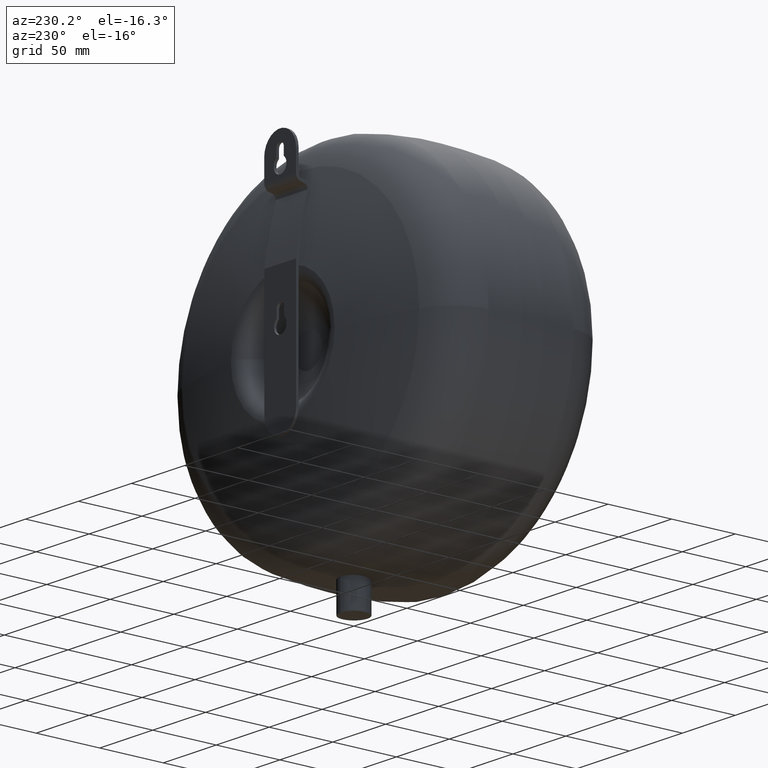
[diagram: clean part render]
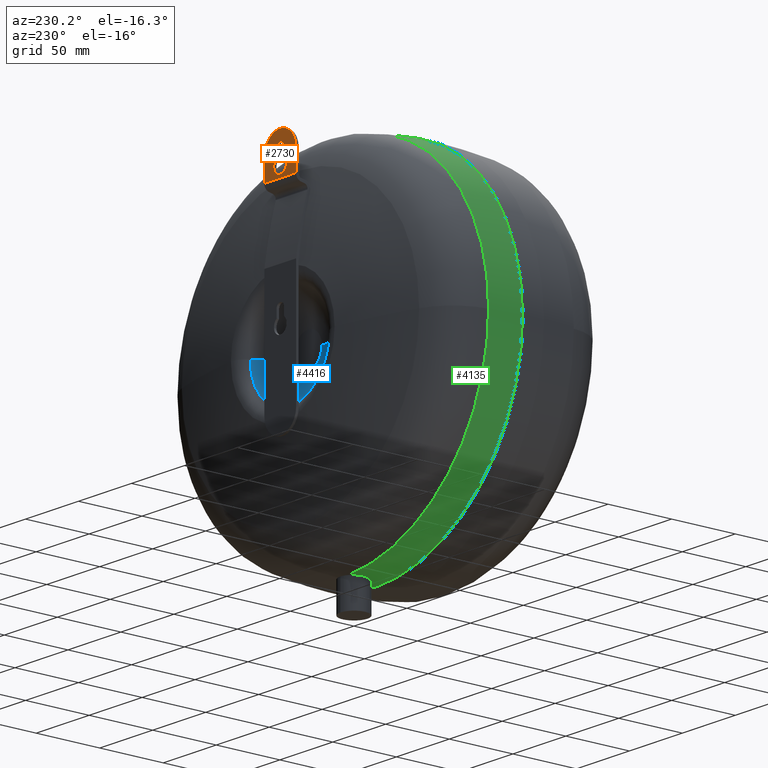
[diagram: same view with three faces highlighted in distinct colors, each labeled with its STEP entity id]
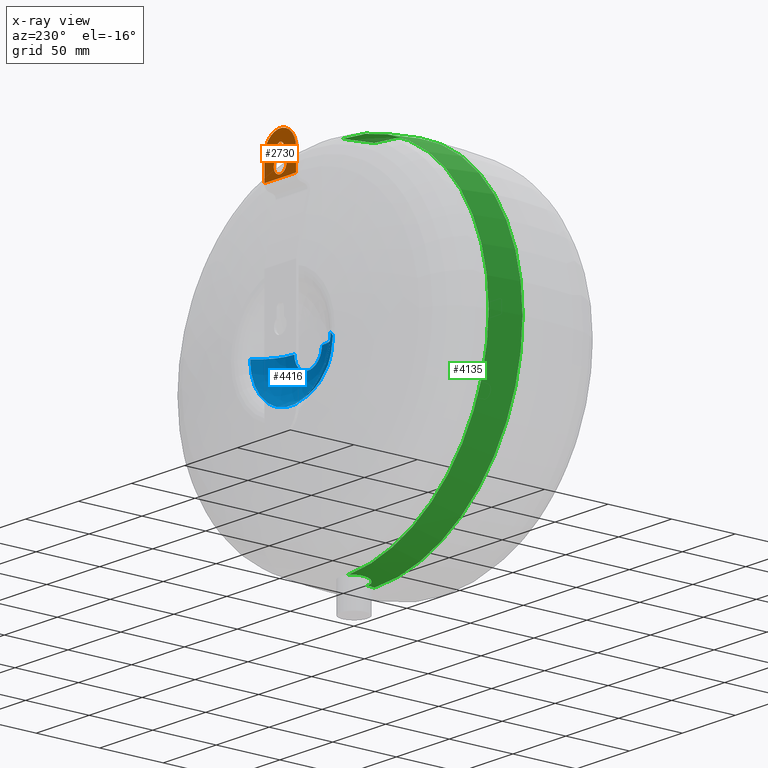
[diagram: x-ray of the same camera — body ghosted, the three highlighted faces saturated]
A machine part, auxiliary view with three faces highlighted in distinct colors.
The next image is the same camera in x-ray (body ghosted, the three faces saturated) — at least one of them is partly hidden behind the body in this view.
Their STEP definitions:

[orange] entity #2730 — the highlighted planar face has unit normal (0, 1, -0.0005).
#2493=CARTESIAN_POINT('',(3.500000000000057,58.087227742557793,277.87933869321091));
#2494=VERTEX_POINT('',#2493);
#2501=CARTESIAN_POINT('',(-3.499999999999965,58.087227742557793,277.87933869321091));
#2502=VERTEX_POINT('',#2501);
#2503=CARTESIAN_POINT('',(3.552714E-014,58.084803880362742,273.00594212357976));
#2504=DIRECTION('',(-2.881267E-016,-0.999999876313509,0.000497366028111));
#2505=DIRECTION('',(0.583333333333336,0.000403977032508,0.81223276160518));
#2506=AXIS2_PLACEMENT_3D('',#2503,#2504,#2505);
#2507=CIRCLE('',#2506,6.0);
#2508=EDGE_CURVE('',#2502,#2494,#2507,.T.);
#2533=CARTESIAN_POINT('',(-3.499999999999965,58.090274906671972,284.00594076302843));
#2534=VERTEX_POINT('',#2533);
#2535=CARTESIAN_POINT('',(-3.499999999999964,58.090274906671972,284.00594076302843));
#2536=DIRECTION('',(-7.248539E-017,-0.000497366028112,-0.999999876313509));
#2537=VECTOR('',#2536,6.126602827595526);
#2538=LINE('',#2535,#2537);
#2539=EDGE_CURVE('',#2534,#2502,#2538,.T.);
#2565=CARTESIAN_POINT('',(3.500000000000036,58.090274906671972,284.00594076302843));
#2566=VERTEX_POINT('',#2565);
#2567=CARTESIAN_POINT('',(3.552714E-014,58.090274906671972,284.00594076302843));
#2568=DIRECTION('',(0.0,-0.999999876313509,0.000497366028112));
#2569=DIRECTION('',(-1.0,0.0,0.0));
#2570=AXIS2_PLACEMENT_3D('',#2567,#2568,#2569);
#2571=CIRCLE('',#2570,3.5);
#2572=EDGE_CURVE('',#2566,#2534,#2571,.T.);
#2595=CARTESIAN_POINT('',(3.500000000000052,58.087227742557793,277.87933869321091));
#2596=DIRECTION('',(-3.189357E-015,0.000497366028112,0.999999876313509));
#2597=VECTOR('',#2596,6.126602827595526);
#2598=LINE('',#2595,#2597);
#2599=EDGE_CURVE('',#2494,#2566,#2598,.T.);
#2684=CARTESIAN_POINT('',(15.000000000000028,58.080656162866504,264.66657684974177));
#2685=DIRECTION('',(1.836605E-016,0.999999876313509,-0.000497366028112));
#2686=DIRECTION('',(-1.0,0.0,0.0));
#2687=AXIS2_PLACEMENT_3D('',#2684,#2685,#2686);
#2688=PLANE('',#2687);
#2689=CARTESIAN_POINT('',(15.000000000000028,58.088782808587638,281.00594113408789));
#2690=VERTEX_POINT('',#2689);
#2691=CARTESIAN_POINT('',(-14.999999999999972,58.088782808587645,281.00594113408789));
#2692=VERTEX_POINT('',#2691);
#2693=CARTESIAN_POINT('',(3.552714E-014,58.088782808587638,281.00594113408789));
#2694=DIRECTION('',(-1.288032E-016,-0.999999876313509,0.000497366028112));
#2695=DIRECTION('',(-0.707106781186547,0.00035169089121,0.707106693726991));
#2696=AXIS2_PLACEMENT_3D('',#2693,#2694,#2695);
#2697=CIRCLE('',#2696,14.999999999999998);
#2698=EDGE_CURVE('',#2690,#2692,#2697,.T.);
#2699=ORIENTED_EDGE('',*,*,#2698,.F.);
#2700=CARTESIAN_POINT('',(15.000000000000028,58.080656162866504,264.66657684974177));
#2701=VERTEX_POINT('',#2700);
#2702=CARTESIAN_POINT('',(15.000000000000027,58.088782808587638,281.00594113408789));
#2703=DIRECTION('',(0.0,-0.000497366028112,-0.999999876313509));
#2704=VECTOR('',#2703,16.339366305304996);
#2705=LINE('',#2702,#2704);
#2706=EDGE_CURVE('',#2690,#2701,#2705,.T.);
#2707=ORIENTED_EDGE('',*,*,#2706,.T.);
#2708=CARTESIAN_POINT('',(-14.999999999999972,58.080656162866511,264.66657684974177));
#2709=VERTEX_POINT('',#2708);
#2710=CARTESIAN_POINT('',(15.000000000000028,58.080656162866504,264.66657684974177));
#2711=DIRECTION('',(-1.0,0.0,0.0));
#2712=VECTOR('',#2711,30.0);
#2713=LINE('',#2710,#2712);
#2714=EDGE_CURVE('',#2701,#2709,#2713,.T.);
#2715=ORIENTED_EDGE('',*,*,#2714,.T.);
#2716=CARTESIAN_POINT('',(-14.999999999999973,58.080656162866511,264.66657684974177));
#2717=DIRECTION('',(0.0,0.000497366028112,0.999999876313509));
#2718=VECTOR('',#2717,16.339366305304996);
#2719=LINE('',#2716,#2718);
#2720=EDGE_CURVE('',#2709,#2692,#2719,.T.);
#2721=ORIENTED_EDGE('',*,*,#2720,.T.);
#2722=EDGE_LOOP('',(#2699,#2707,#2715,#2721));
#2723=FACE_OUTER_BOUND('',#2722,.T.);
#2724=ORIENTED_EDGE('',*,*,#2572,.T.);
#2725=ORIENTED_EDGE('',*,*,#2539,.T.);
#2726=ORIENTED_EDGE('',*,*,#2508,.T.);
#2727=ORIENTED_EDGE('',*,*,#2599,.T.);
#2728=EDGE_LOOP('',(#2724,#2725,#2726,#2727));
#2729=FACE_BOUND('',#2728,.T.);
#2730=ADVANCED_FACE('',(#2723,#2729),#2688,.T.);

[blue] entity #4416 — the highlighted face is a freeform B-spline surface patch.
#3511=CARTESIAN_POINT('',(38.000000000000021,50.000000000000021,160.50000000000006));
#3512=VERTEX_POINT('',#3511);
#3521=CARTESIAN_POINT('',(-37.999999999999979,50.000000000000036,160.50000000000006));
#3522=VERTEX_POINT('',#3521);
#3530=CARTESIAN_POINT('',(2.131628E-014,50.000000000000028,160.50000000000006));
#3531=DIRECTION('',(0.0,-1.0,0.0));
#3532=DIRECTION('',(0.0,0.0,1.0));
#3533=AXIS2_PLACEMENT_3D('',#3530,#3531,#3532);
#3534=CIRCLE('',#3533,38.0);
#3535=EDGE_CURVE('',#3522,#3512,#3534,.T.);
#3575=CARTESIAN_POINT('',(13.000000000000014,36.000000000000028,160.50000000000006));
#3576=VERTEX_POINT('',#3575);
#3577=CARTESIAN_POINT('',(12.621338310274949,65.99761016022336,160.50000000000006));
#3578=DIRECTION('',(0.0,0.0,1.0));
#3579=DIRECTION('',(1.0,0.0,0.0));
#3580=AXIS2_PLACEMENT_3D('',#3577,#3578,#3579);
#3581=CIRCLE('',#3580,30.0);
#3582=EDGE_CURVE('',#3576,#3512,#3581,.T.);
#3593=CARTESIAN_POINT('',(-12.999999999999986,36.000000000000028,160.50000000000006));
#3594=VERTEX_POINT('',#3593);
#3602=CARTESIAN_POINT('',(-12.621338310274906,65.99761016022336,160.50000000000006));
#3603=DIRECTION('',(0.0,0.0,-1.0));
#3604=DIRECTION('',(-1.0,0.0,0.0));
#3605=AXIS2_PLACEMENT_3D('',#3602,#3603,#3604);
#3606=CIRCLE('',#3605,30.0);
#3607=EDGE_CURVE('',#3594,#3522,#3606,.T.);
#4365=CARTESIAN_POINT('',(1.421085E-014,36.000000000000028,160.50000000000006));
#4366=DIRECTION('',(0.0,-1.0,0.0));
#4367=DIRECTION('',(0.0,0.0,1.0));
#4368=AXIS2_PLACEMENT_3D('',#4365,#4366,#4367);
#4369=CIRCLE('',#4368,13.0);
#4370=EDGE_CURVE('',#3594,#3576,#4369,.T.);
#4375=CARTESIAN_POINT('',(-38.0,50.000000000000057,160.50000000000006));
#4376=CARTESIAN_POINT('',(-23.932407229126227,27.683124282618255,160.50000000000006));
#4377=CARTESIAN_POINT('',(1.065814E-014,38.781772505328618,160.50000000000006));
#4378=CARTESIAN_POINT('',(-37.999999999999993,50.000000000000057,122.50000000000004));
#4379=CARTESIAN_POINT('',(-23.932407229126223,27.683124282618252,136.56759277087383));
#4380=CARTESIAN_POINT('',(1.065814E-014,38.781772505328618,160.50000000000006));
#4381=CARTESIAN_POINT('',(1.837767E-014,50.00000000000005,122.50000000000003));
#4382=CARTESIAN_POINT('',(1.427826E-014,27.683124282618245,136.56759277087383));
#4383=CARTESIAN_POINT('',(1.631698E-014,38.781772505328618,160.50000000000006));
#4384=CARTESIAN_POINT('',(38.000000000000036,50.000000000000036,122.50000000000004));
#4385=CARTESIAN_POINT('',(23.932407229126252,27.683124282618238,136.56759277087383));
#4386=CARTESIAN_POINT('',(2.197582E-014,38.781772505328618,160.50000000000006));
#4387=CARTESIAN_POINT('',(38.000000000000043,50.000000000000043,160.50000000000006));
#4388=CARTESIAN_POINT('',(23.932407229126255,27.683124282618241,160.50000000000006));
#4389=CARTESIAN_POINT('',(2.197582E-014,38.781772505328618,160.50000000000006));
#4390=CARTESIAN_POINT('',(38.000000000000036,50.000000000000036,198.50000000000006));
#4391=CARTESIAN_POINT('',(23.932407229126252,27.683124282618238,184.43240722912628));
#4392=CARTESIAN_POINT('',(2.197582E-014,38.781772505328618,160.50000000000006));
#4393=CARTESIAN_POINT('',(1.837767E-014,50.00000000000005,198.50000000000009));
#4394=CARTESIAN_POINT('',(1.427826E-014,27.683124282618245,184.43240722912628));
#4395=CARTESIAN_POINT('',(1.631698E-014,38.781772505328618,160.50000000000006));
#4396=CARTESIAN_POINT('',(-37.999999999999993,50.000000000000057,198.50000000000006));
#4397=CARTESIAN_POINT('',(-23.932407229126223,27.683124282618252,184.43240722912628));
#4398=CARTESIAN_POINT('',(1.065814E-014,38.781772505328618,160.50000000000006));
#4399=CARTESIAN_POINT('',(-38.0,50.000000000000057,160.50000000000006));
#4400=CARTESIAN_POINT('',(-23.932407229126227,27.683124282618255,160.50000000000006));
#4401=CARTESIAN_POINT('',(1.065814E-014,38.781772505328618,160.50000000000006));
#4409=(BOUNDED_SURFACE()B_SPLINE_SURFACE(2,2,((#4375,#4378,#4381,#4384,#4387,#4390,#4393,#4396,#4399),(#4376,#4379,#4382,#4385,#4388,#4391,#4394,#4397,#4400),(#4377,#4380,#4383,#4386,#4389,#4392,#4395,#4398,#4401)),.UNSPECIFIED.,.F.,.T.,.U.)B_SPLINE_SURFACE_WITH_KNOTS((3,3),(3,2,2,2,3),(0.562442074459441,2.005025544639727),(0.0,1.570796326794897,3.141592653589793,4.71238898038469,6.283185307179586),.UNSPECIFIED.)GEOMETRIC_REPRESENTATION_ITEM()RATIONAL_B_SPLINE_SURFACE(((1.0,0.707106781186548,1.0,0.707106781186548,1.0,0.707106781186548,1.0,0.707106781186548,1.0),(0.750953351835334,0.531004207437532,0.750953351835334,0.531004207437532,0.750953351835334,0.531004207437532,0.750953351835334,0.531004207437532,0.750953351835334),(1.0,0.707106781186548,1.0,0.707106781186548,1.0,0.707106781186548,1.0,0.707106781186548,1.0)))REPRESENTATION_ITEM('')SURFACE());
#4410=ORIENTED_EDGE('',*,*,#3582,.T.);
#4411=ORIENTED_EDGE('',*,*,#3535,.F.);
#4412=ORIENTED_EDGE('',*,*,#3607,.F.);
#4413=ORIENTED_EDGE('',*,*,#4370,.T.);
#4414=EDGE_LOOP('',(#4410,#4411,#4412,#4413));
#4415=FACE_OUTER_BOUND('',#4414,.T.);
#4416=ADVANCED_FACE('',(#4415),#4409,.T.);

[green] entity #4135 — the highlighted conical surface has half-angle 4.574 deg.
#3397=CARTESIAN_POINT('',(1.421085E-014,-15.999999999999972,300.50000000000006));
#3398=VERTEX_POINT('',#3397);
#3414=CARTESIAN_POINT('',(1.338153E-014,-15.999999999999973,20.50000000000005));
#3415=VERTEX_POINT('',#3414);
#3940=CARTESIAN_POINT('',(-5.694075868830296,9.000000000000028,22.617522868204873));
#3941=VERTEX_POINT('',#3940);
#3957=CARTESIAN_POINT('',(-138.00000000000006,9.000000000000053,160.50000000000006));
#3958=VERTEX_POINT('',#3957);
#3959=CARTESIAN_POINT('',(1.421085E-014,9.000000000000028,160.50000000000006));
#3960=DIRECTION('',(0.0,-1.0,0.0));
#3961=DIRECTION('',(0.0,0.0,1.0));
#3962=AXIS2_PLACEMENT_3D('',#3959,#3960,#3961);
#3963=CIRCLE('',#3962,138.00000000000006);
#3964=EDGE_CURVE('',#3958,#3941,#3963,.T.);
#3982=CARTESIAN_POINT('',(1.785135E-014,9.000000000000028,298.50000000000011));
#3983=VERTEX_POINT('',#3982);
#3984=CARTESIAN_POINT('',(1.338153E-014,-15.999999999999972,300.50000000000011));
#3985=DIRECTION('',(1.782231E-016,0.996815278536125,-0.07974522228289));
#3986=VECTOR('',#3985,25.07987240796891);
#3987=LINE('',#3984,#3986);
#3988=EDGE_CURVE('',#3398,#3983,#3987,.T.);
#3991=CARTESIAN_POINT('',(-1.155289E-015,-10.649999999999995,20.928000000000033));
#3992=VERTEX_POINT('',#3991);
#3993=CARTESIAN_POINT('',(1.338153E-014,-15.999999999999973,20.50000000000005));
#3994=DIRECTION('',(1.782231E-016,0.996815278536125,0.079745222282889));
#3995=VECTOR('',#3994,5.36709269530532);
#3996=LINE('',#3993,#3995);
#3997=EDGE_CURVE('',#3415,#3992,#3996,.T.);
#4077=CARTESIAN_POINT('',(-5.694075868830296,9.000000000000028,22.617522868204873));
#4078=CARTESIAN_POINT('',(-6.362630598618985,8.577022071790879,22.611264821558962));
#4079=CARTESIAN_POINT('',(-6.974002982160229,8.084012789678127,22.60193431447351));
#4080=CARTESIAN_POINT('',(-8.453138946278024,6.613991498276988,22.564677025727917));
#4081=CARTESIAN_POINT('',(-9.274461465461087,5.422984461934192,22.524134329632176));
#4082=CARTESIAN_POINT('',(-10.368680918634155,2.81333493924015,22.39268762241278));
#4083=CARTESIAN_POINT('',(-10.641634214880881,1.394771278190092,22.300690145575402));
#4084=CARTESIAN_POINT('',(-10.658056980964659,-1.279082174415493,22.087413228435651));
#4085=CARTESIAN_POINT('',(-10.396872208634633,-2.71261328241016,21.951459111774966));
#4086=CARTESIAN_POINT('',(-9.317968177773651,-5.350578922817618,21.663207656195596));
#4087=CARTESIAN_POINT('',(-8.500311440268689,-6.555160532465635,21.512023396226624));
#4088=CARTESIAN_POINT('',(-6.609498204026345,-8.457622778186845,21.256933818526875));
#4089=CARTESIAN_POINT('',(-5.410886647587653,-9.283155219617498,21.136122548114258));
#4090=CARTESIAN_POINT('',(-2.778983939604927,-10.379398525128835,20.971097717375073));
#4091=CARTESIAN_POINT('',(-1.345577380532987,-10.650000000000006,20.928000000000026));
#4092=CARTESIAN_POINT('',(-1.554312E-015,-10.650000000000006,20.928000000000026));
#4093=B_SPLINE_CURVE_WITH_KNOTS('',3,(#4077,#4078,#4079,#4080,#4081,#4082,#4083,#4084,#4085,#4086,#4087,#4088,#4089,#4090,#4091,#4092),.UNSPECIFIED.,.F.,.U.,(4,2,2,2,2,2,2,4),(-4.259034982520168,-4.033403692959953,-3.633321428825217,-3.23323916469048,-2.828602587677757,-2.423966010665034,-2.020292796505137,-1.616619582345241),.UNSPECIFIED.);
#4094=EDGE_CURVE('',#3941,#3992,#4093,.T.);
#4110=CARTESIAN_POINT('',(7.105427E-015,-3.499999999999972,160.50000000000006));
#4111=DIRECTION('',(-1.836910E-016,-1.0,0.0));
#4112=DIRECTION('',(0.0,0.0,1.0));
#4113=AXIS2_PLACEMENT_3D('',#4110,#4111,#4112);
#4114=CONICAL_SURFACE('',#4113,139.00000000000003,4.573921259900768);
#4115=ORIENTED_EDGE('',*,*,#3988,.T.);
#4116=CARTESIAN_POINT('',(1.421085E-014,9.000000000000028,160.50000000000006));
#4117=DIRECTION('',(0.0,-1.0,0.0));
#4118=DIRECTION('',(0.0,0.0,1.0));
#4119=AXIS2_PLACEMENT_3D('',#4116,#4117,#4118);
#4120=CIRCLE('',#4119,138.00000000000006);
#4121=EDGE_CURVE('',#3983,#3958,#4120,.T.);
#4122=ORIENTED_EDGE('',*,*,#4121,.T.);
#4123=ORIENTED_EDGE('',*,*,#3964,.T.);
#4124=ORIENTED_EDGE('',*,*,#4094,.T.);
#4125=ORIENTED_EDGE('',*,*,#3997,.F.);
#4126=CARTESIAN_POINT('',(7.105427E-015,-15.999999999999972,160.50000000000006));
#4127=DIRECTION('',(0.0,-1.0,0.0));
#4128=DIRECTION('',(0.0,0.0,1.0));
#4129=AXIS2_PLACEMENT_3D('',#4126,#4127,#4128);
#4130=CIRCLE('',#4129,140.0);
#4131=EDGE_CURVE('',#3398,#3415,#4130,.T.);
#4132=ORIENTED_EDGE('',*,*,#4131,.F.);
#4133=EDGE_LOOP('',(#4115,#4122,#4123,#4124,#4125,#4132));
#4134=FACE_OUTER_BOUND('',#4133,.T.);
#4135=ADVANCED_FACE('',(#4134),#4114,.T.);